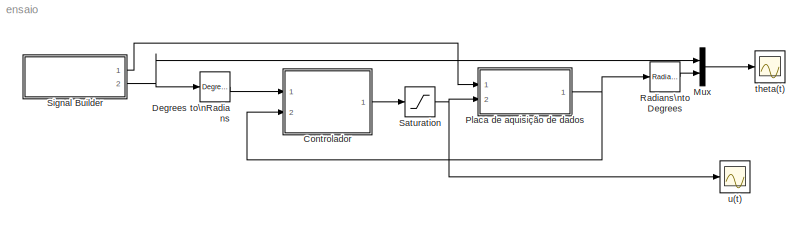
MODEL ensaio
KIND model
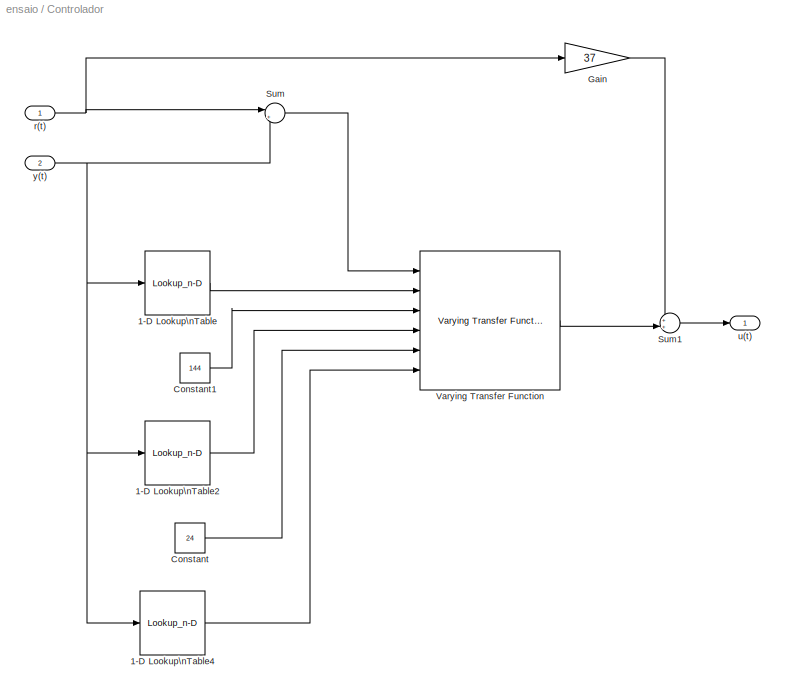
BLOCK [SubSystem] Controlador
  Ports = [2, 1]
  RequestExecContextInheritance = off
  SID = 277
BLOCK [Lookup_n-D] Controlador/1-D Lookup\nTable
  BreakpointsForDimension1 = deg2rad([15 37.5 55 70 85])
  InternalRulePriority = Speed
  NumberOfTableDimensions = 1
  Ports = [1, 1]
  RndMeth = Simplest
  SID = 280
  Table = [105 117.3 138.6 561 990]
BLOCK [Lookup_n-D] Controlador/1-D Lookup\nTable2
  BreakpointsForDimension1 = deg2rad([15 37.5 55 70 85])
  InternalRulePriority = Speed
  NumberOfTableDimensions = 1
  Ports = [1, 1]
  RndMeth = Simplest
  SID = 281
  Table = [402.5 442 511.5 726 907.5]
BLOCK [Lookup_n-D] Controlador/1-D Lookup\nTable4
  BreakpointsForDimension1 = deg2rad([15 37.5 55 70 85])
  InternalRulePriority = Speed
  NumberOfTableDimensions = 1
  Ports = [1, 1]
  RndMeth = Simplest
  SID = 282
  Table = [175 170 165 165 165]
BLOCK [Constant] Controlador/Constant
  SID = 283
  Value = 24
BLOCK [Constant] Controlador/Constant1
  SID = 284
  Value = 144
BLOCK [Gain] Controlador/Gain
  Gain = 37
  OutDataTypeStr = Inherit: Inherit via internal rule
  ParamDataTypeStr = Inherit: Inherit via internal rule
  SID = 285
  SaturateOnIntegerOverflow = off
BLOCK [Sum] Controlador/Sum
  IconShape = round
  InputSameDT = off
  Inputs = |+-
  OutDataTypeStr = Inherit: Inherit via internal rule
  Ports = [2, 1]
  SID = 286
  SaturateOnIntegerOverflow = off
BLOCK [Sum] Controlador/Sum1
  IconShape = round
  InputSameDT = off
  Inputs = ++|
  OutDataTypeStr = Inherit: Inherit via internal rule
  Ports = [2, 1]
  SID = 287
  SaturateOnIntegerOverflow = off
BLOCK [Reference] Controlador/Varying Transfer Function  REF=cstblocks/Linear Parameter Varying/Varying Transfer Function
  N = 2
  Ports = [6, 1]
  SID = 288
  SourceBlock = cstblocks/Linear Parameter Varying/Varying Transfer Function
  SourceProductBaseCode = CT
  SourceProductName = Control System Toolbox
  SourceType = Varying Transfer Function
BLOCK [Inport] Controlador/r(t)
  IconDisplay = Port number
  SID = 278
BLOCK [Outport] Controlador/u(t)
  IconDisplay = Port number
  SID = 289
BLOCK [Inport] Controlador/y(t)
  IconDisplay = Port number
  Port = 2
  SID = 279
BLOCK [Reference] Degrees to\nRadians  REF=simulink_extras/Transformations/Degrees to\nRadians
  Ports = [1, 1]
  SID = 197
  SourceBlock = simulink_extras/Transformations/Degrees to\nRadians
  SourceProductBaseCode = SL
  SourceProductName = Simulink
  SourceType = DegreesToRadians
BLOCK [Mux] Mux
  DisplayOption = bar
  Inputs = 2
  Ports = [2, 1]
  SID = 262
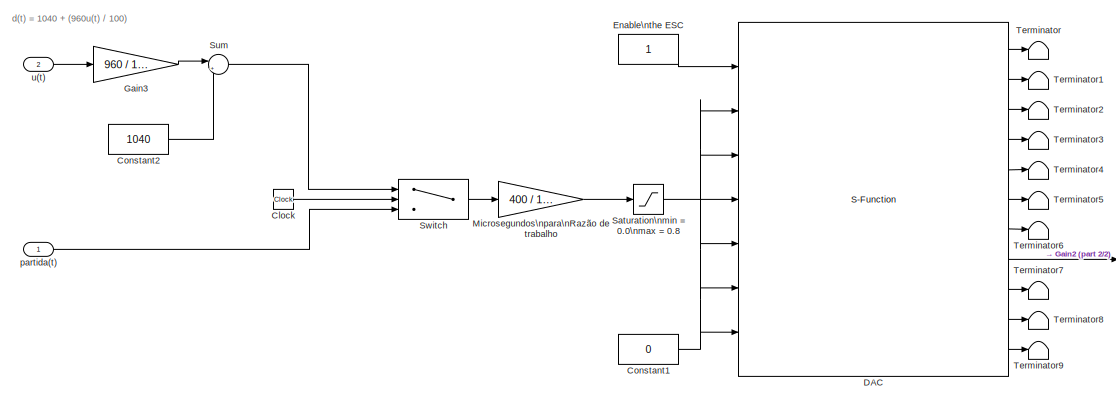
[diagram: Placa de aquisição de dados - part 1/2, left side, full height]
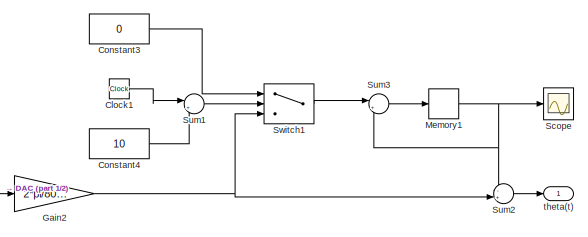
[diagram: Placa de aquisição de dados - part 2/2, middle right region]
BLOCK [SubSystem] Placa de aquisição de dados
  Ports = [2, 1]
  RequestExecContextInheritance = off
  SID = 129
BLOCK [Clock] Placa de aquisição de dados/Clock
  SID = 175
BLOCK [Clock] Placa de aquisição de dados/Clock1
  SID = 192
BLOCK [Constant] Placa de aquisição de dados/Constant1
  SID = 100
  Value = 0
BLOCK [Constant] Placa de aquisição de dados/Constant2
  SID = 143
  Value = 1040
BLOCK [Constant] Placa de aquisição de dados/Constant3
  SID = 184
  Value = 0
BLOCK [Constant] Placa de aquisição de dados/Constant4
  SID = 194
  Value = 10
BLOCK [S-Function] Placa de aquisição de dados/DAC
  EnableBusSupport = off
  FunctionName = dacSfunction
  Parameters = serialPort,sampleTime,gpioOutCh1FinalState,gpioOutCh2FinalState,gpioOutCh3FinalState,pwmFrequency,pwmCh1FinalDuty,pwmCh2FinalDuty,pwmCh3FinalDuty,pwmCh4FinalDuty,enc1Mode,enc1ResetCount,enc1Direction,enc1Quadrature,enc1Filter,enc2Mode,enc2ResetCount,enc2Direction,enc2Quadrature,enc2Filter,enc3Mode,enc3ResetCount,enc3Direction,enc3Quadrature,enc3Filter
  Ports = [7, 11]
  SFcnIsStateOwnerBlock = off
  SFunctionDeploymentMode = off
  SID = 2
BLOCK [Constant] Placa de aquisição de dados/Enable\nthe ESC
  SID = 176
BLOCK [Gain] Placa de aquisição de dados/Gain2
  Gain = 2*pi/8000
  OutDataTypeStr = Inherit: Inherit via internal rule
  ParamDataTypeStr = Inherit: Inherit via internal rule
  SID = 127
  SaturateOnIntegerOverflow = off
BLOCK [Gain] Placa de aquisição de dados/Gain3
  Gain = 960 / 100
  OutDataTypeStr = Inherit: Inherit via internal rule
  ParamDataTypeStr = Inherit: Inherit via internal rule
  SID = 145
  SaturateOnIntegerOverflow = off
BLOCK [Memory] Placa de aquisição de dados/Memory1
  SID = 187
BLOCK [Gain] Placa de aquisição de dados/Microsegundos\npara\nRazão de trabalho
  Gain = 400 / 1e6
  OutDataTypeStr = Inherit: Inherit via internal rule
  ParamDataTypeStr = Inherit: Inherit via internal rule
  SID = 126
  SaturateOnIntegerOverflow = off
BLOCK [Saturate] Placa de aquisição de dados/Saturation\nmin = 0.0\nmax = 0.8
  InputPortMap = u0
  LowerLimit = 0.0
  Ports = [1, 1]
  SID = 160
  UpperLimit = 0.8
BLOCK [Scope] Placa de aquisição de dados/Scope
  Floating = off
  NumInputPorts = 1
  Ports = [1]
  SID = 189
  ScopeSpecificationString = C++SS(StrPVP('Location','[-847, 624, -523, 863]'),StrPVP('Open','off'),MxPVP('AxesTitles',53,'struct(''axes1'',''%<SignalLabel>'')'),MxPVP('ScopeGraphics',56,'struct(''FigureColor'',''[0.5 0.5 0.5]'',''AxesColor'',''[0 0 0]'',''AxesTickColor'',''[1 1 1]'',''LineColors'',''[1 1 0;1 0 1;0 1 1;1 0 0;0 1 0;0 0 1]'',''LineStyles'',''-|-|-|-|-|-'',''LineWidths'',''[0.5 0.5 0.5 0.5 0.5 0.5]'',''MarkerSty...<+262ch>
BLOCK [Sum] Placa de aquisição de dados/Sum
  IconShape = round
  InputSameDT = off
  Inputs = |++
  OutDataTypeStr = Inherit: Inherit via internal rule
  Ports = [2, 1]
  SID = 144
  SaturateOnIntegerOverflow = off
BLOCK [Sum] Placa de aquisição de dados/Sum1
  IconShape = round
  InputSameDT = off
  Inputs = |+-
  OutDataTypeStr = Inherit: Inherit via internal rule
  Ports = [2, 1]
  SID = 193
  SaturateOnIntegerOverflow = off
BLOCK [Sum] Placa de aquisição de dados/Sum2
  IconShape = round
  InputSameDT = off
  Inputs = -+|
  OutDataTypeStr = Inherit: Inherit via internal rule
  Ports = [2, 1]
  SID = 185
  SaturateOnIntegerOverflow = off
BLOCK [Sum] Placa de aquisição de dados/Sum3
  IconShape = round
  InputSameDT = off
  Inputs = |++
  OutDataTypeStr = Inherit: Inherit via internal rule
  Ports = [2, 1]
  SID = 188
  SaturateOnIntegerOverflow = off
BLOCK [Switch] Placa de aquisição de dados/Switch
  InputSameDT = off
  SID = 174
  SaturateOnIntegerOverflow = off
  Threshold = 10
BLOCK [Switch] Placa de aquisição de dados/Switch1
  Criteria = u2 ~= 0
  InputSameDT = off
  SID = 179
  SaturateOnIntegerOverflow = off
BLOCK [Terminator] Placa de aquisição de dados/Terminator
  SID = 149
BLOCK [Terminator] Placa de aquisição de dados/Terminator1
  SID = 150
BLOCK [Terminator] Placa de aquisição de dados/Terminator2
  SID = 151
BLOCK [Terminator] Placa de aquisição de dados/Terminator3
  SID = 152
BLOCK [Terminator] Placa de aquisição de dados/Terminator4
  SID = 153
BLOCK [Terminator] Placa de aquisição de dados/Terminator5
  SID = 154
BLOCK [Terminator] Placa de aquisição de dados/Terminator6
  SID = 155
BLOCK [Terminator] Placa de aquisição de dados/Terminator7
  SID = 156
BLOCK [Terminator] Placa de aquisição de dados/Terminator8
  SID = 157
BLOCK [Terminator] Placa de aquisição de dados/Terminator9
  SID = 158
BLOCK [Inport] Placa de aquisição de dados/partida(t)
  IconDisplay = Port number
  SID = 177
BLOCK [Outport] Placa de aquisição de dados/theta(t)
  IconDisplay = Port number
  SID = 133
BLOCK [Inport] Placa de aquisição de dados/u(t)
  IconDisplay = Port number
  Port = 2
  SID = 132
BLOCK [Reference] Radians\nto Degrees  REF=simulink_extras/Transformations/Radians\nto Degrees
  Ports = [1, 1]
  SID = 200
  SourceBlock = simulink_extras/Transformations/Radians\nto Degrees
  SourceProductBaseCode = SL
  SourceProductName = Simulink
  SourceType = RadiansToDegrees
BLOCK [Saturate] Saturation
  InputPortMap = u0
  LowerLimit = 0
  Ports = [1, 1]
  SID = 217
  UpperLimit = 100
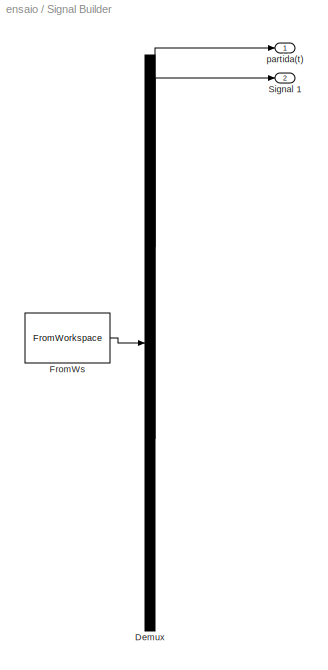
BLOCK [SubSystem] Signal Builder
  ClipboardFcn = sigbuilder_block('clipboard');
  CloseFcn = sigbuilder_block('close');
  ContinueFcn = sigbuilder_block('continue');
  CopyFcn = sigbuilder_block('copy');
  DeleteFcn = sigbuilder_block('delete');
  LoadFcn = sigbuilder_block('load');
  MaskHideContents = on
  ModelCloseFcn = sigbuilder_block('modelClose');
  NameChangeFcn = sigbuilder_block('namechange');
  OpenFcn = sigbuilder_block('open',[-396.75 180.75 1093.5 399.75 ]);
  PauseFcn = sigbuilder_block('pause');
  Ports = [0, 2]
  PreSaveFcn = sigbuilder_block('preSave');
  RequestExecContextInheritance = off
  SID = 290
  StartFcn = sigbuilder_block('start');
  StopFcn = sigbuilder_block('stop');
  Tag = STV Subsys
BLOCK [Demux] Signal Builder/Demux
  Outputs = 2
  Ports = [1, 2]
  SID = 290:1
  Tag = STV Demux
BLOCK [FromWorkspace] Signal Builder/FromWs
  SID = 290:2
  SampleTime = 0
  SigBuilderData = DataTag0
  Tag = STV FromWs
  VariableName = tuvar
  VnvData = DataTag1
  ZeroCross = on
BLOCK [Outport] Signal Builder/Signal 1
  IconDisplay = Port number
  Port = 2
  SID = 290:12
  Tag = STV Outport
BLOCK [Outport] Signal Builder/partida(t)
  IconDisplay = Port number
  SID = 290:10
  Tag = STV Outport
BLOCK [Scope] theta(t)
  Floating = off
  NumInputPorts = 1
  Ports = [1]
  SID = 169
  ScopeSpecificationString = Simulink.scopes.TimeScopeBlockCfg('CurrentConfiguration', extmgr.ConfigurationSet(extmgr.Configuration('Core','General UI',true),extmgr.Configuration('Core','Source UI',true),extmgr.Configuration('Sources','WiredSimulink',true,'DataLoggingVariableName','ScopeData1','DataLoggingSaveFormat','Array','DataLoggingDecimation','1','DataLoggingDecimateData',true),extmgr.Configuration('Visuals','Time Domai...<+1782ch>
BLOCK [Scope] u(t)
  Floating = off
  NumInputPorts = 1
  Ports = [1]
  SID = 218
  ScopeSpecificationString = C++SS(StrPVP('Location','[464, 60, 1422, 841]'),StrPVP('Open','off'),StrPVP('ZoomMode','yonly'),MxPVP('AxesTitles',53,'struct(''axes1'',''%<SignalLabel>'')'),MxPVP('ScopeGraphics',56,'struct(''FigureColor'',''[0.501960784313725 0.501960784313725 0.501960784313725]'',''AxesColor'',''[0 0 0]'',''AxesTickColor'',''[1 1 1]'',''LineColors'',''[1 1 0;1 0 1;0 1 1;1 0 0;0 1 0;0 0 1]'',''LineStyles'',''-|-...<+299ch>
ANNOTATION Placa de aquisição de dados: d(t) = 1040 + (960u(t) / 100)
LINE Controlador/1-D Lookup\nTable2:1 -> Controlador/Varying Transfer Function:4
LINE Controlador/1-D Lookup\nTable4:1 -> Controlador/Varying Transfer Function:6
LINE Controlador/1-D Lookup\nTable:1 -> Controlador/Varying Transfer Function:2
LINE Controlador/Constant1:1 -> Controlador/Varying Transfer Function:3
LINE Controlador/Constant:1 -> Controlador/Varying Transfer Function:5
LINE Controlador/Gain:1 -> Controlador/Sum1:1
LINE Controlador/Sum1:1 -> Controlador/u(t):1
LINE Controlador/Sum:1 -> Controlador/Varying Transfer Function:1
LINE Controlador/Varying Transfer Function:1 -> Controlador/Sum1:2
NET Controlador/r(t):1 -> Controlador/Gain:1, Controlador/Sum:1
NET Controlador/y(t):1 -> Controlador/1-D Lookup\nTable2:1, Controlador/1-D Lookup\nTable4:1, Controlador/1-D Lookup\nTable:1, Controlador/Sum:2
LINE Controlador:1 -> Saturation:1
LINE Degrees to\nRadians:1 -> Controlador:1
LINE Mux:1 -> theta(t):1
LINE Placa de aquisição de dados/Clock1:1 -> Placa de aquisição de dados/Sum1:1
LINE Placa de aquisição de dados/Clock:1 -> Placa de aquisição de dados/Switch:2
NET Placa de aquisição de dados/Constant1:1 -> Placa de aquisição de dados/DAC:2, Placa de aquisição de dados/DAC:3, Placa de aquisição de dados/DAC:5, Placa de aquisição de dados/DAC:6, Placa de aquisição de dados/DAC:7
LINE Placa de aquisição de dados/Constant2:1 -> Placa de aquisição de dados/Sum:2
LINE Placa de aquisição de dados/Constant3:1 -> Placa de aquisição de dados/Switch1:1
LINE Placa de aquisição de dados/Constant4:1 -> Placa de aquisição de dados/Sum1:2
LINE Placa de aquisição de dados/DAC:1 -> Placa de aquisição de dados/Terminator:1
LINE Placa de aquisição de dados/DAC:10 -> Placa de aquisição de dados/Terminator8:1
LINE Placa de aquisição de dados/DAC:11 -> Placa de aquisição de dados/Terminator9:1
LINE Placa de aquisição de dados/DAC:2 -> Placa de aquisição de dados/Terminator1:1
LINE Placa de aquisição de dados/DAC:3 -> Placa de aquisição de dados/Terminator2:1
LINE Placa de aquisição de dados/DAC:4 -> Placa de aquisição de dados/Terminator3:1
LINE Placa de aquisição de dados/DAC:5 -> Placa de aquisição de dados/Terminator4:1
LINE Placa de aquisição de dados/DAC:6 -> Placa de aquisição de dados/Terminator5:1
LINE Placa de aquisição de dados/DAC:7 -> Placa de aquisição de dados/Terminator6:1
LINE Placa de aquisição de dados/DAC:8 -> Placa de aquisição de dados/Gain2:1
LINE Placa de aquisição de dados/DAC:9 -> Placa de aquisição de dados/Terminator7:1
LINE Placa de aquisição de dados/Enable\nthe ESC:1 -> Placa de aquisição de dados/DAC:1
NET Placa de aquisição de dados/Gain2:1 -> Placa de aquisição de dados/Sum2:2, Placa de aquisição de dados/Switch1:3
LINE Placa de aquisição de dados/Gain3:1 -> Placa de aquisição de dados/Sum:1
NET Placa de aquisição de dados/Memory1:1 -> Placa de aquisição de dados/Scope:1, Placa de aquisição de dados/Sum2:1, Placa de aquisição de dados/Sum3:2
LINE Placa de aquisição de dados/Microsegundos\npara\nRazão de trabalho:1 -> Placa de aquisição de dados/Saturation\nmin = 0.0\nmax = 0.8:1
LINE Placa de aquisição de dados/Saturation\nmin = 0.0\nmax = 0.8:1 -> Placa de aquisição de dados/DAC:4
LINE Placa de aquisição de dados/Sum1:1 -> Placa de aquisição de dados/Switch1:2
LINE Placa de aquisição de dados/Sum2:1 -> Placa de aquisição de dados/theta(t):1
LINE Placa de aquisição de dados/Sum3:1 -> Placa de aquisição de dados/Memory1:1
LINE Placa de aquisição de dados/Sum:1 -> Placa de aquisição de dados/Switch:1
LINE Placa de aquisição de dados/Switch1:1 -> Placa de aquisição de dados/Sum3:1
LINE Placa de aquisição de dados/Switch:1 -> Placa de aquisição de dados/Microsegundos\npara\nRazão de trabalho:1
LINE Placa de aquisição de dados/partida(t):1 -> Placa de aquisição de dados/Switch:3
LINE Placa de aquisição de dados/u(t):1 -> Placa de aquisição de dados/Gain3:1
NET Placa de aquisição de dados:1 -> Controlador:2, Radians\nto Degrees:1
LINE Radians\nto Degrees:1 -> Mux:2
NET Saturation:1 -> Placa de aquisição de dados:2, u(t):1
LINE Signal Builder/Demux:1 -> Signal Builder/partida(t):1
LINE Signal Builder/Demux:2 -> Signal Builder/Signal 1:1
LINE Signal Builder/FromWs:1 -> Signal Builder/Demux:1
LINE Signal Builder:1 -> Placa de aquisição de dados:1
NET Signal Builder:2 -> Degrees to\nRadians:1, Mux:1
note: NET lines group one-source signal fan-out (src -> all destinations, sorted); 1:1 wires keep LINE
